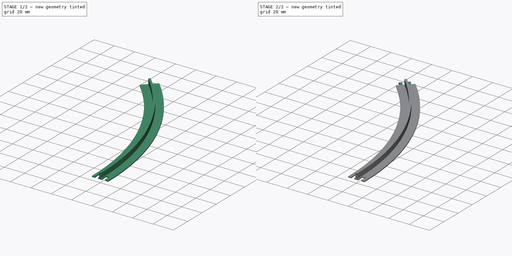
[diagram: build sequence overview — one tinted view per stage of 2, left to right]
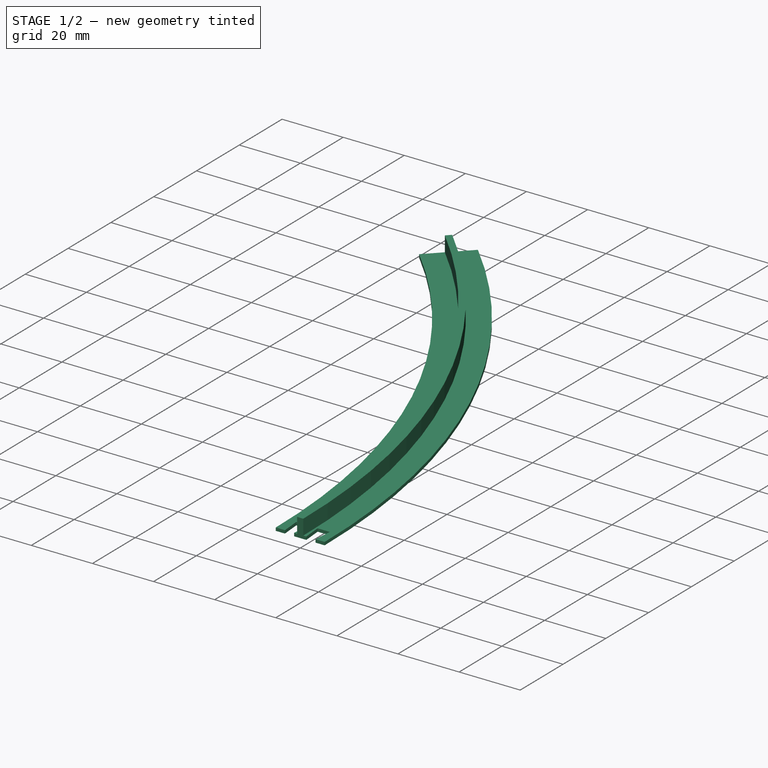
[diagram: stage 1 of 2 — iso view after this stage's code; geometry added in this stage tinted green]
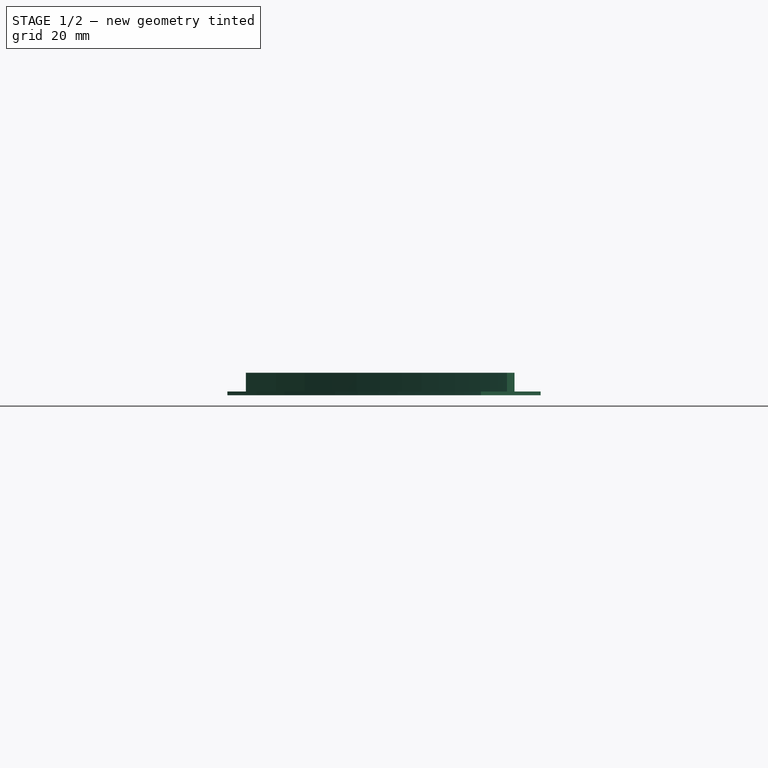
[diagram: stage 1 of 2 — front view after this stage's code; geometry added in this stage tinted green]
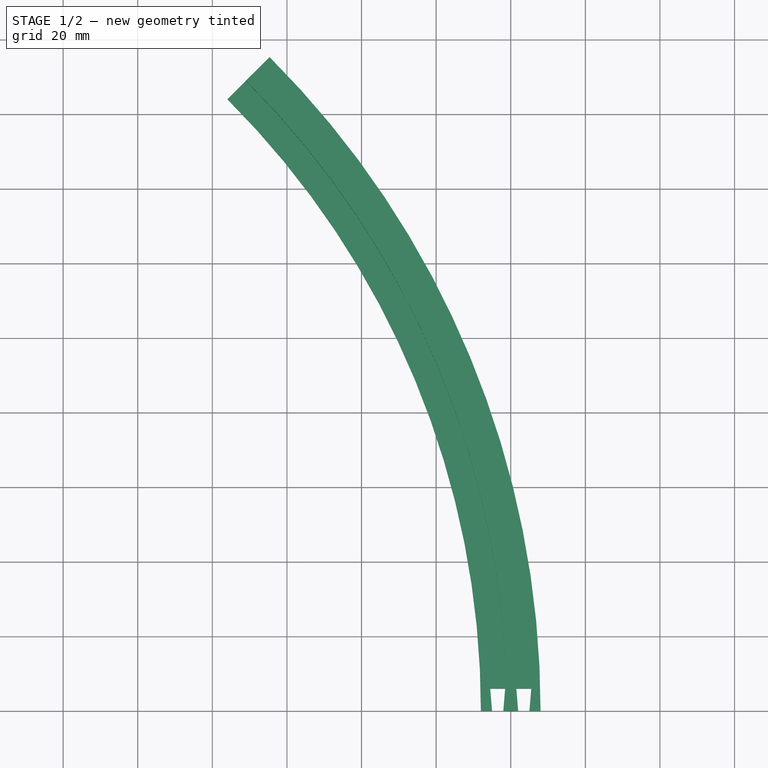
[diagram: stage 1 of 2 — top view after this stage's code; geometry added in this stage tinted green]
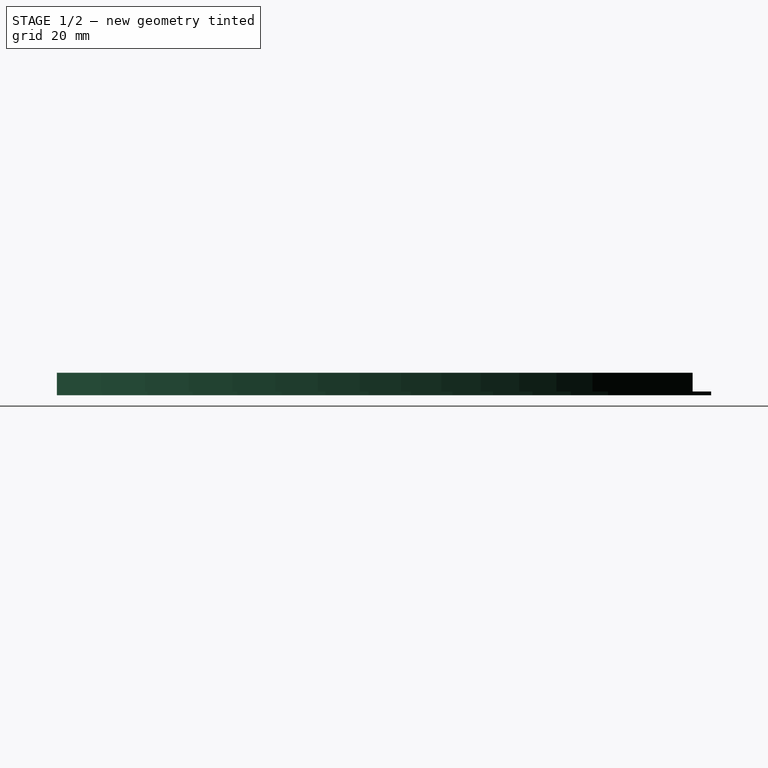
[diagram: stage 1 of 2 — right view after this stage's code; geometry added in this stage tinted green]
FCSTD DOCUMENT  (FreeCAD 1.0R39109 (Git))
Label: squirrel2
License: All rights reserved
LicenseURL: https://en.wikipedia.org/wiki/All_rights_reserved
objects: Sketcher::SketchObject×4, PartDesign::AdditivePipe×1, PartDesign::Pocket×1, PartDesign::Pad×1, PartDesign::Body×1
note: 18 computed .brp shape members not serialized (recipe doc carries the construction recipe); baked Part::Feature solids carry a one-line shape summary decoded from their .brp

FEATURE [Sketcher::SketchObject] Sketch
  ArcFitTolerance = 1e-06
  AttachmentSupport = -> [XY_Plane]
  FullyConstrained = true
  MakeInternals = false
  MapMode = 5
  sketch-geometry (2):
    g0: ArcOfCircle CenterX=0 CenterY=0 CenterZ=0 NormalX=0 NormalY=0 NormalZ=1 AngleXU=0 Radius=240 StartAngle=0 EndAngle=0.785398
    g1: LineSegment [constr] StartX=0 StartY=0 StartZ=0 EndX=169.706 EndY=169.706 EndZ=0
  constraints (6):
    c: Coincident(g0,g-1)
    c: PointOnObject(g0,g-1)
    c: Diameter(g0) = 480
    c: Coincident(g1,g0)
    c: Coincident(g1,g0)
    c: Angle(g-1,g1) = 0.785398
FEATURE [Sketcher::SketchObject] Sketch001
  ArcFitTolerance = 1e-06
  AttachmentOffset = pos=(240,0,0) rot=(0,0,1;0rad)
  AttachmentSupport = -> [XZ_Plane]
  FullyConstrained = true
  MakeInternals = false
  MapMode = 5
  Placement = pos=(240,0,0) rot=(1,0,0;1.5708rad)
  sketch-geometry (8):
    g0: LineSegment StartX=-8 StartY=0 StartZ=0 EndX=8 EndY=0 EndZ=0
    g1: LineSegment StartX=8 StartY=0 StartZ=0 EndX=8 EndY=1 EndZ=0
    g2: LineSegment StartX=8 StartY=1 StartZ=0 EndX=1 EndY=1 EndZ=0
    g3: LineSegment StartX=1 StartY=1 StartZ=0 EndX=1 EndY=6 EndZ=0
    g4: LineSegment StartX=1 StartY=6 StartZ=0 EndX=-1 EndY=6 EndZ=0
    g5: LineSegment StartX=-1 StartY=6 StartZ=0 EndX=-1 EndY=1 EndZ=0
    g6: LineSegment StartX=-1 StartY=1 StartZ=0 EndX=-8 EndY=1 EndZ=0
    g7: LineSegment StartX=-8 StartY=1 StartZ=0 EndX=-8 EndY=0 EndZ=0
  constraints (20):
    c: PointOnObject(g0,g-1)
    c: Coincident(g0,g1)
    c: Coincident(g1,g2)
    c: Coincident(g2,g3)
    c: Coincident(g3,g4)
    c: Coincident(g4,g5)
    c: Vertical(g5)
    c: Coincident(g5,g6)
    c: Coincident(g6,g7)
    c: Coincident(g7,g0)
    c: Vertical(g7)
    c: Symmetric(g6,g1,g-2)
    c: Symmetric(g5,g2,g-2)
    c: Symmetric(g3,g4,g-2)
    c: Symmetric(g0,g0,g-1)
    c: Horizontal(g6)
    c: Distance(g7,g7) = 1
    c: DistanceX(g0,g0) = 16
    c: Distance(g4,g4) = 2
    c: DistanceY(g5,g5) = 5
FEATURE [PartDesign::AdditivePipe] AdditivePipe
  AuxilleryCurvelinear = true
  AuxillerySpineTangent = false
  Binormal = (0,0,0)
  Mode = 2
  Placement = pos=(0,0,0) rot=(1,0,0;1.5708rad)
  Profile = -> Sketch001
  Refine = true
  Spine = -> Sketch
  SpineTangent = false
  Suppressed = false
  Transformation = 0
  Transition = 0
FEATURE [Sketcher::SketchObject] Sketch002
  ArcFitTolerance = 1e-06
  AttachmentSupport = -> [XY_Plane]
  FullyConstrained = true
  MakeInternals = false
  MapMode = 5
  sketch-geometry (13):
    g0: LineSegment StartX=235 StartY=0 StartZ=0 EndX=234.5 EndY=6 EndZ=0
    g1: LineSegment StartX=234.5 StartY=6 StartZ=0 EndX=238.5 EndY=6 EndZ=0
    g2: LineSegment StartX=238.5 StartY=6 StartZ=0 EndX=238 EndY=0 EndZ=0
    g3: LineSegment StartX=242 StartY=0 StartZ=0 EndX=241.5 EndY=6 EndZ=0
    g4: LineSegment StartX=241.5 StartY=6 StartZ=0 EndX=245.5 EndY=6 EndZ=0
    g5: LineSegment StartX=245.5 StartY=6 StartZ=0 EndX=245 EndY=0 EndZ=0
    g6: GeomPoint X=240 Y=0 Z=0
    g7: LineSegment [constr] StartX=240 StartY=50.3354 StartZ=0 EndX=240 EndY=-4.98924 EndZ=0
    g8: LineSegment StartX=238 StartY=0 StartZ=0 EndX=235 EndY=0 EndZ=0
    g9: LineSegment StartX=242 StartY=0 StartZ=0 EndX=245 EndY=0 EndZ=0
    g10: GeomPoint [constr] X=236.5 Y=0 Z=0
    g11: LineSegment [constr] StartX=236.5 StartY=10.6456 StartZ=0 EndX=236.5 EndY=-7.56086 EndZ=0
    g12: GeomPoint [constr] X=243.5 Y=0 Z=0
  constraints (27):
    c: Coincident(g0,g1)
    c: Coincident(g1,g2)
    c: Coincident(g3,g4)
    c: Coincident(g4,g5)
    c: Symmetric(g5,g0,g6)
    c: Vertical(g7)
    c: PointOnObject(g0,g-1)
    c: Symmetric(g5,g0,g7)
    c: Symmetric(g0,g4,g7)
    c: Symmetric(g1,g3,g7)
    c: Symmetric(g2,g3,g7)
    c: Horizontal(g1)
    c: DistanceX(g-1,g6) = 240
    c: Coincident(g8,g2)
    c: Coincident(g8,g0)
    c: Coincident(g9,g3)
    c: Coincident(g9,g5)
    c: DistanceX(g1,g1) = 4
    c: DistanceY(g0,g0) = 6
    c: Symmetric(g2,g0,g10)
    c: Symmetric(g0,g1,g11)
    c: Symmetric(g9,g9,g12)
    c: DistanceX(g10,g12) = 7
    c: DistanceX(g8,g8) = 3
    c: Symmetric(g0,g2,g11)
    c: Block(g11)
    c: Block(g7)
FEATURE [PartDesign::Pocket] Pocket
  BaseFeature = -> AdditivePipe
  Direction = (0,0,-1)
  Length = 5
  Length2 = 5
  Midplane = true
  Placement = pos=(0,0,0) rot=(1,0,0;1.5708rad)
  Profile = -> Sketch002
  ReferenceAxis = -> Sketch002 [N_Axis]
  Refine = true
  Suppressed = false
  Type = 1
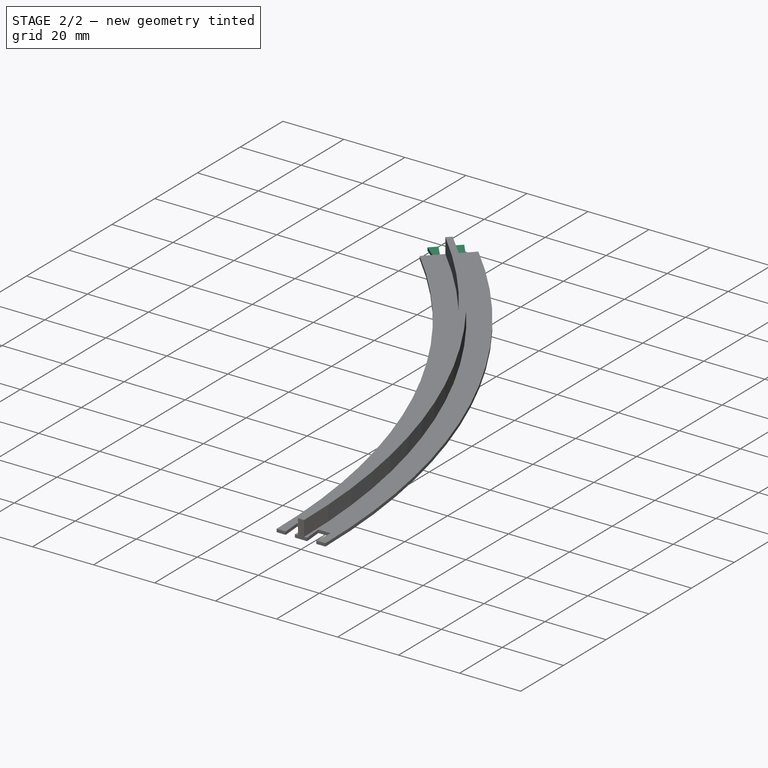
[diagram: stage 2 of 2 — iso view after this stage's code; geometry added in this stage tinted green]
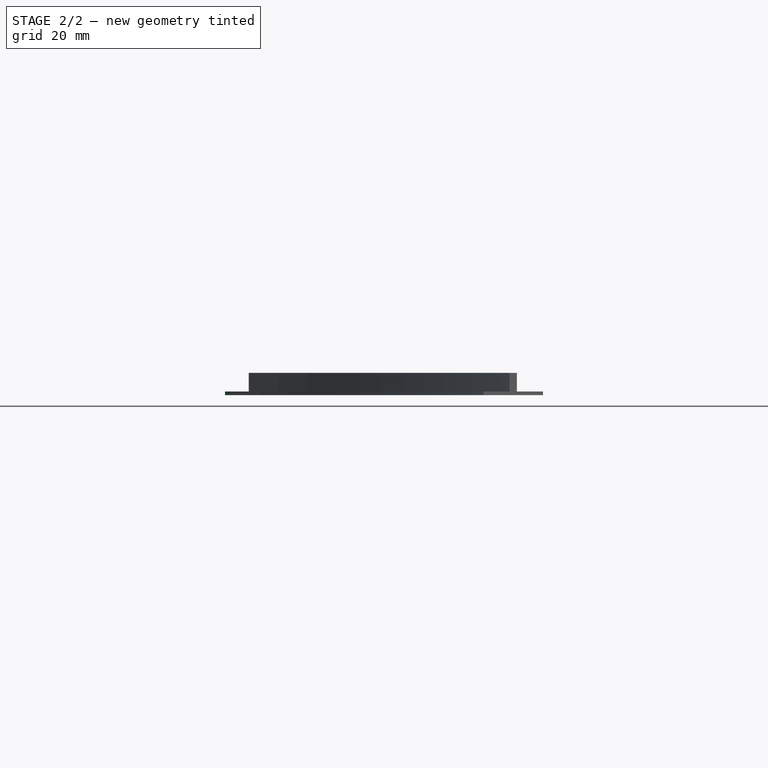
[diagram: stage 2 of 2 — front view after this stage's code; geometry added in this stage tinted green]
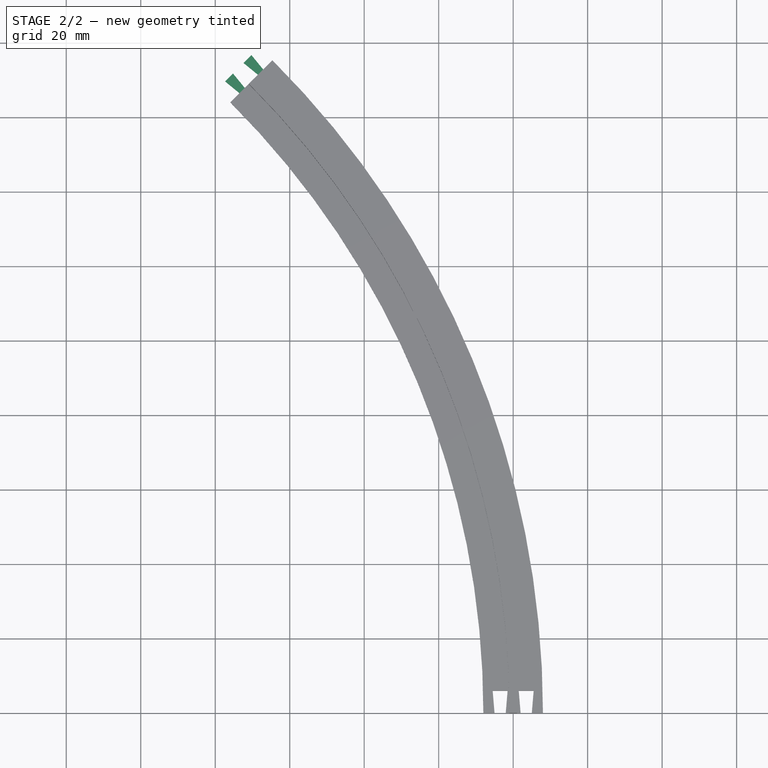
[diagram: stage 2 of 2 — top view after this stage's code; geometry added in this stage tinted green]
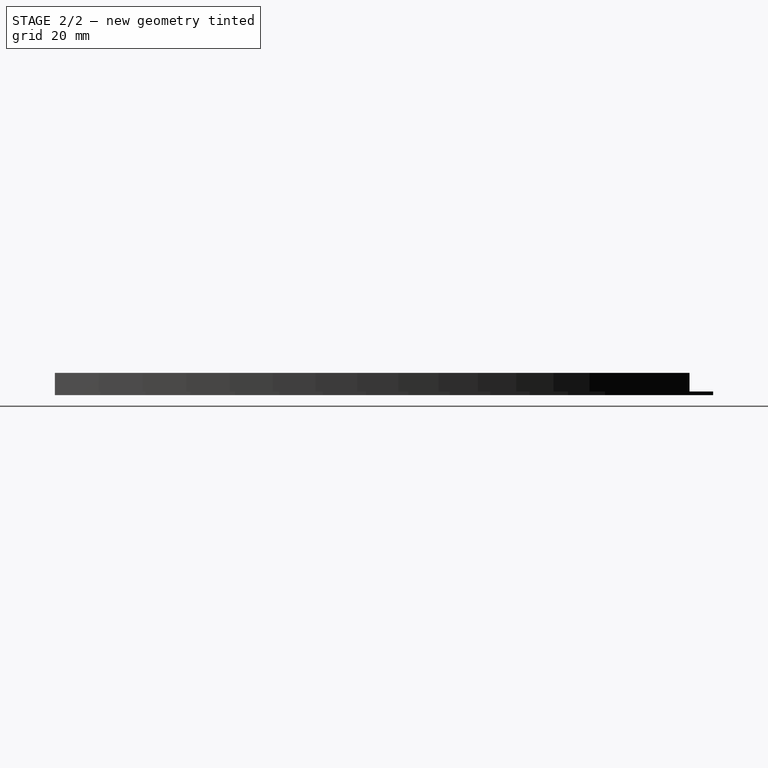
[diagram: stage 2 of 2 — right view after this stage's code; geometry added in this stage tinted green]
FEATURE [Sketcher::SketchObject] Sketch003
  ArcFitTolerance = 1e-06
  AttachmentSupport = -> [XY_Plane]
  FullyConstrained = true
  MakeInternals = false
  MapMode = 5
  sketch-geometry (13):
    g0: LineSegment StartX=162.635 StartY=169.706 StartZ=0 EndX=164.756 EndY=171.827 EndZ=0
    g1: LineSegment StartX=164.756 StartY=171.827 StartZ=0 EndX=167.938 EndY=167.938 EndZ=0
    g2: LineSegment StartX=167.938 StartY=167.938 StartZ=0 EndX=166.524 EndY=166.524 EndZ=0
    g3: LineSegment StartX=166.524 StartY=166.524 StartZ=0 EndX=162.635 EndY=169.706 EndZ=0
    g4: LineSegment StartX=169.706 StartY=176.777 StartZ=0 EndX=167.584 EndY=174.655 EndZ=0
    g5: LineSegment StartX=167.584 StartY=174.655 StartZ=0 EndX=171.473 EndY=171.473 EndZ=0
    g6: LineSegment StartX=171.473 StartY=171.473 StartZ=0 EndX=172.888 EndY=172.888 EndZ=0
    g7: LineSegment StartX=172.888 StartY=172.888 StartZ=0 EndX=169.706 EndY=176.777 EndZ=0
    g8: LineSegment [constr] StartX=0 StartY=0 StartZ=0 EndX=169.706 EndY=169.706 EndZ=0
    g9: GeomPoint [constr] X=169.706 Y=169.706 Z=0
    g10: LineSegment [constr] StartX=169.706 StartY=169.706 StartZ=0 EndX=162.635 EndY=176.777 EndZ=0
    g11: LineSegment [constr] StartX=167.231 StartY=167.231 StartZ=0 EndX=163.695 EndY=170.766 EndZ=0
    g12: GeomPoint [constr] X=172.181 Y=172.181 Z=0
  constraints (30):
    c: Coincident(g0,g1)
    c: Coincident(g1,g2)
    c: Coincident(g2,g3)
    c: Coincident(g3,g0)
    c: Coincident(g4,g5)
    c: Coincident(g5,g6)
    c: Coincident(g6,g7)
    c: Coincident(g7,g4)
    c: PointOnObject(g1,g8)
    c: PointOnObject(g2,g8)
    c: Coincident(g10,g9)
    c: Perpendicular(g10,g8)
    c: Symmetric(g6,g2,g9)
    c: Symmetric(g5,g1,g9)
    c: Symmetric(g0,g4,g10)
    c: Symmetric(g4,g0,g10)
    c: Parallel(g0,g8)
    c: Symmetric(g0,g0,g11)
    c: PointOnObject(g11,g0)
    c: Symmetric(g2,g1,g11)
    c: Distance(g11,g11) = 5
    c: Symmetric(g6,g5,g12)
    c: Distance(g12,g11) = 7
    c: Distance(g2) = 2
    c: Distance(g0) = 3
    c: Coincident(g9,g8)
    c: Distance(g8) = 240
    c: Coincident(g8,g-1)
    c: Angle(g-1,g8) = 0.785398
    c: Distance(g10) = 10
FEATURE [PartDesign::Pad] Pad
  BaseFeature = -> Pocket
  Direction = (0,0,1)
  Length = 1
  Length2 = 10
  Placement = pos=(0,0,0) rot=(1,0,0;1.5708rad)
  Profile = -> Sketch003
  ReferenceAxis = -> Sketch003 [N_Axis]
  Refine = true
  Suppressed = false
  Type = 0
FEATURE [PartDesign::Body] Body
  AllowCompound = false
  Group = -> [Sketch,Sketch001,AdditivePipe,Sketch002,Pocket,Sketch003,Pad]
  Origin = -> Origin
  Tip = -> Pad
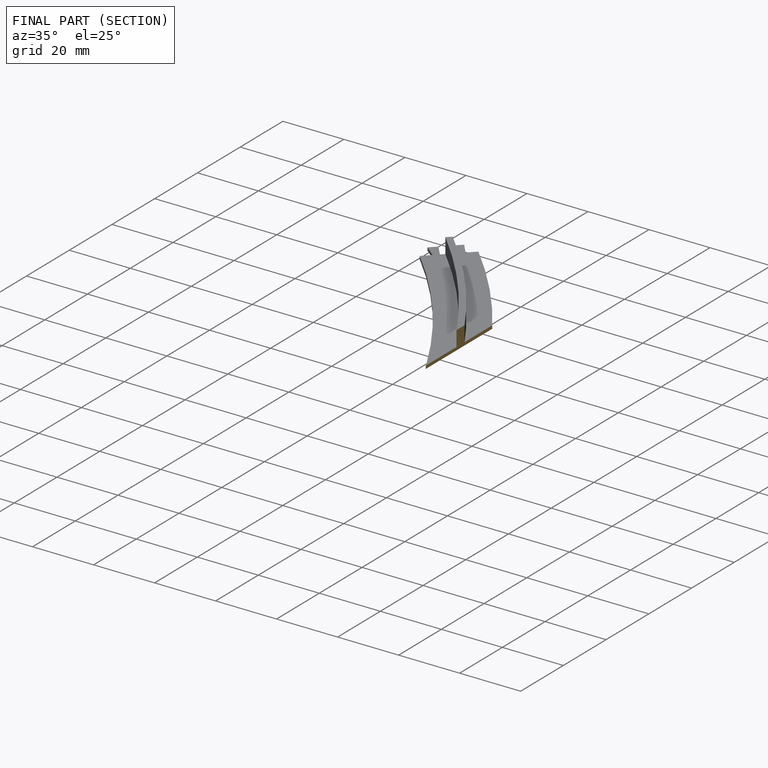
[diagram: finished part — half-section view (interior)]
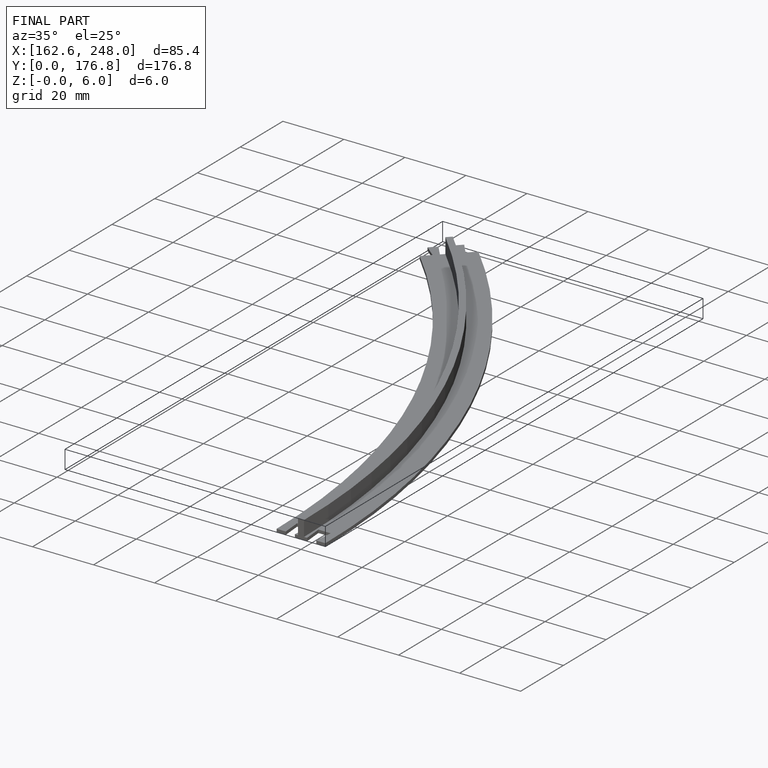
[diagram: finished part — iso view with bounding-box wireframe]
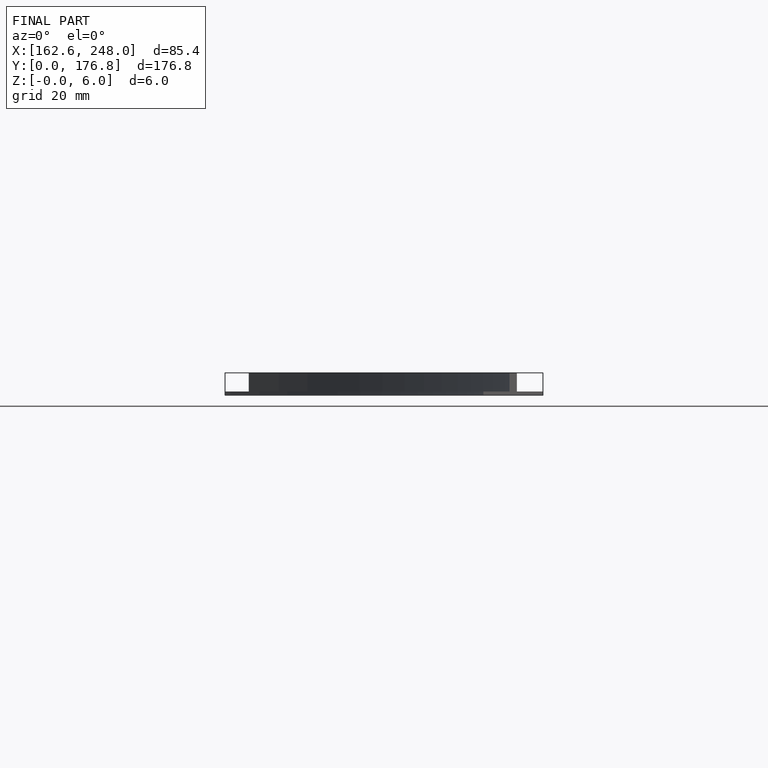
[diagram: finished part — front view with bounding-box wireframe]
